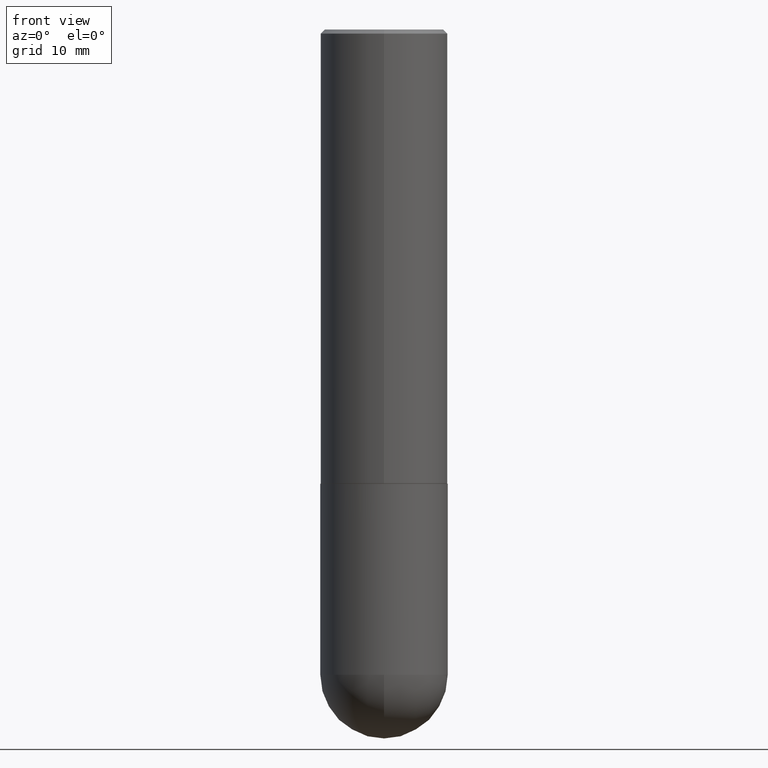
[diagram: clean part render]
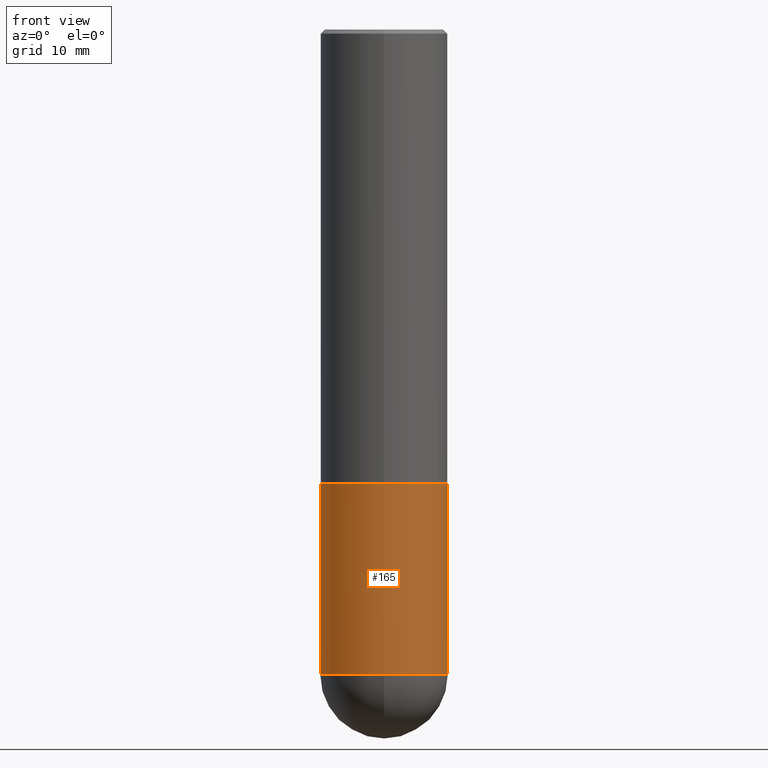
[diagram: same view with one face highlighted and labeled with its STEP entity id]
A machine part, front view. The second image highlights one B-rep face of the part: STEP entity #165.
In plain terms, the highlighted cylindrical surface (partial cylindrical patch) has radius 7.9997 mm, axis along (-0, 0, 1).
Its self-contained STEP definition (entity closure, byte-faithful):
#11 = EDGE_CURVE ( 'NONE', #368, #267, #52, .T. ) ;
#17 = VERTEX_POINT ( 'NONE', #150 ) ;
#18 = DIRECTION ( 'NONE',  ( -2.445468806185136597E-29, 3.491481338843145583E-15, 1.000000000000000000 ) ) ;
#25 = VERTEX_POINT ( 'NONE', #243 ) ;
#27 = CARTESIAN_POINT ( 'NONE',  ( 7.798477749484091354E-29, -1.113415941550384898E-14, -3.188949999999999729 ) ) ;
#31 = VECTOR ( 'NONE', #130, 39.37007874015748143 ) ;
#34 = LINE ( 'NONE', #163, #31 ) ;
#38 = CARTESIAN_POINT ( 'NONE',  ( 0.3149500000000000077, -1.168398043933816632E-14, -3.188949999999999729 ) ) ;
#39 = AXIS2_PLACEMENT_3D ( 'NONE', #95, #222, #123 ) ;
#45 = EDGE_CURVE ( 'NONE', #25, #230, #177, .T. ) ;
#52 = LINE ( 'NONE', #78, #405 ) ;
#60 = DIRECTION ( 'NONE',  ( -2.445468806185136597E-29, 3.491481338843145583E-15, 1.000000000000000000 ) ) ;
#78 = CARTESIAN_POINT ( 'NONE',  ( -0.3149500000000000077, 2.237854346276435590E-15, -1.549218606675782676E-29 ) ) ;
#80 = DIRECTION ( 'NONE',  ( -2.445468806185136877E-29, 3.491481338843145188E-15, 1.000000000000000000 ) ) ;
#82 = CIRCLE ( 'NONE', #343, 0.3149500000000000077 ) ;
#90 = CYLINDRICAL_SURFACE ( 'NONE', #39, 0.3149500000000000077 ) ;
#95 = CARTESIAN_POINT ( 'NONE',  ( 0.000000000000000000, 0.000000000000000000, 0.000000000000000000 ) ) ;
#109 = DIRECTION ( 'NONE',  ( 1.000000000000000000, -6.982962677686263555E-15, 0.000000000000000000 ) ) ;
#113 = ORIENTED_EDGE ( 'NONE', *, *, #45, .T. ) ;
#118 = ORIENTED_EDGE ( 'NONE', *, *, #367, .F. ) ;
#121 = CARTESIAN_POINT ( 'NONE',  ( 7.798477749484091354E-29, -1.113415941550384898E-14, -3.188949999999999729 ) ) ;
#123 = DIRECTION ( 'NONE',  ( 1.000000000000000000, -6.982962677686266711E-15, 4.876176775795936353E-29 ) ) ;
#128 = EDGE_CURVE ( 'NONE', #230, #17, #34, .T. ) ;
#130 = DIRECTION ( 'NONE',  ( -2.445468806185136877E-29, 3.491481338843145188E-15, 1.000000000000000000 ) ) ;
#149 = DIRECTION ( 'NONE',  ( 1.000000000000000000, -6.982962677686263555E-15, 0.000000000000000000 ) ) ;
#150 = CARTESIAN_POINT ( 'NONE',  ( 0.3149500000000000077, -1.003451736783519063E-14, -2.244099999999999540 ) ) ;
#163 = CARTESIAN_POINT ( 'NONE',  ( 0.3149500000000000077, -2.199284095337289871E-15, 1.535751875536930130E-29 ) ) ;
#165 = ADVANCED_FACE ( 'NONE', ( #316 ), #90, .T. ) ;
#177 = CIRCLE ( 'NONE', #208, 0.3149500000000000077 ) ;
#188 = DIRECTION ( 'NONE',  ( 1.000000000000000000, -6.982962677686266711E-15, 0.000000000000000000 ) ) ;
#208 = AXIS2_PLACEMENT_3D ( 'NONE', #27, #399, #109 ) ;
#213 = CIRCLE ( 'NONE', #269, 0.3149500000000000077 ) ;
#222 = DIRECTION ( 'NONE',  ( -2.445468806185136597E-29, 3.491481338843145583E-15, 1.000000000000000000 ) ) ;
#223 = CARTESIAN_POINT ( 'NONE',  ( 5.487876547960064752E-29, -7.835233272497900762E-15, -2.244099999999999540 ) ) ;
#230 = VERTEX_POINT ( 'NONE', #38 ) ;
#243 = CARTESIAN_POINT ( 'NONE',  ( -2.237854346276359071E-15, -0.3149500000000114985, -3.188949999999998841 ) ) ;
#247 = CARTESIAN_POINT ( 'NONE',  ( -0.3149500000000000077, -7.246841997724440463E-15, -2.244099999999999540 ) ) ;
#267 = VERTEX_POINT ( 'NONE', #247 ) ;
#269 = AXIS2_PLACEMENT_3D ( 'NONE', #223, #60, #188 ) ;
#304 = EDGE_LOOP ( 'NONE', ( #371, #348, #113, #309, #118 ) ) ;
#309 = ORIENTED_EDGE ( 'NONE', *, *, #128, .T. ) ;
#316 = FACE_OUTER_BOUND ( 'NONE', #304, .T. ) ;
#318 = CARTESIAN_POINT ( 'NONE',  ( -0.3149500000000000077, -7.246841997724442041E-15, -3.188949999999999729 ) ) ;
#339 = EDGE_CURVE ( 'NONE', #368, #25, #82, .T. ) ;
#343 = AXIS2_PLACEMENT_3D ( 'NONE', #121, #18, #149 ) ;
#348 = ORIENTED_EDGE ( 'NONE', *, *, #339, .T. ) ;
#367 = EDGE_CURVE ( 'NONE', #267, #17, #213, .T. ) ;
#368 = VERTEX_POINT ( 'NONE', #318 ) ;
#371 = ORIENTED_EDGE ( 'NONE', *, *, #11, .F. ) ;
#399 = DIRECTION ( 'NONE',  ( -2.445468806185136597E-29, 3.491481338843145583E-15, 1.000000000000000000 ) ) ;
#405 = VECTOR ( 'NONE', #80, 39.37007874015748143 ) ;